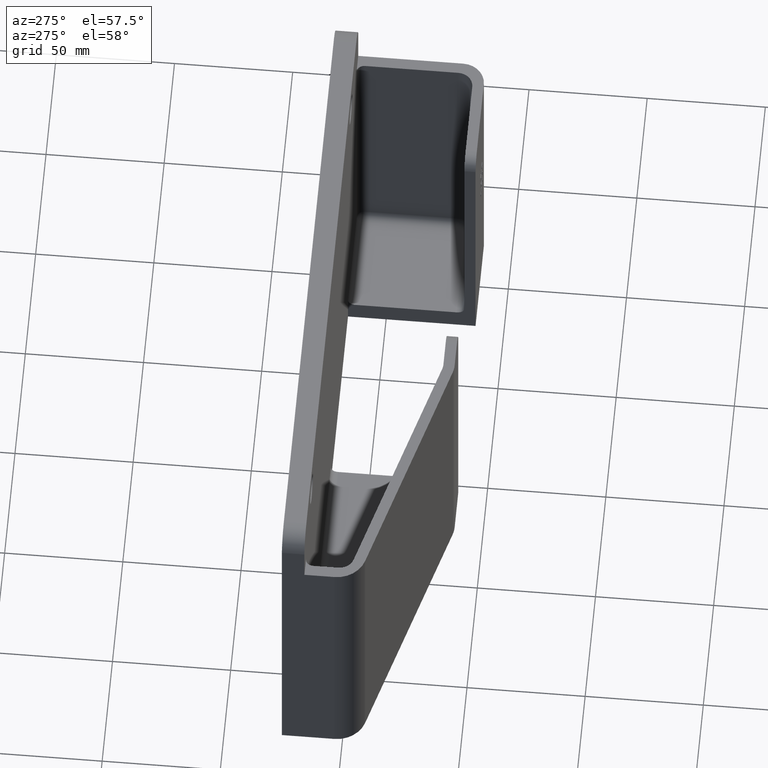
[diagram: clean part render]
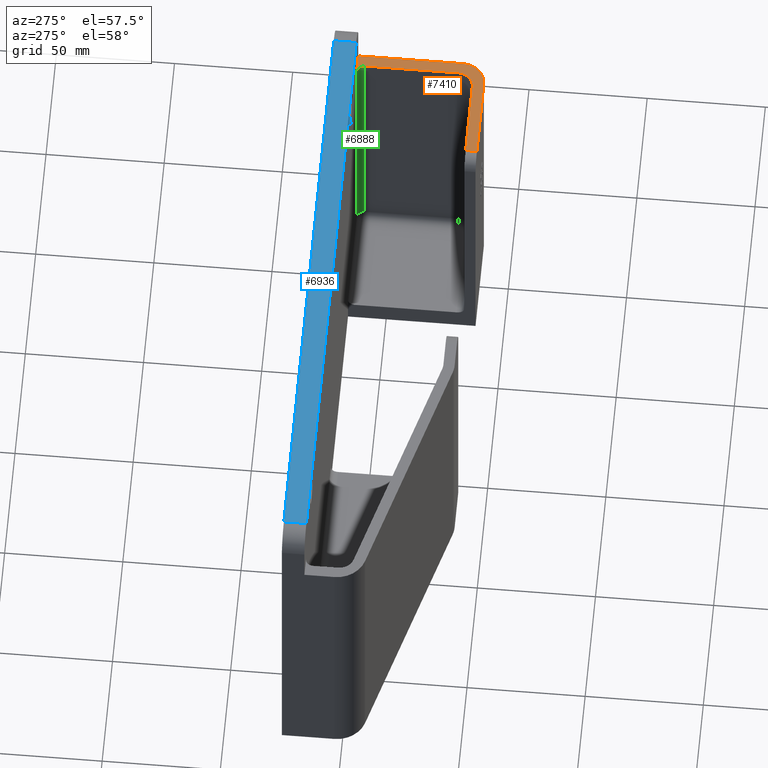
[diagram: same view with three faces highlighted in distinct colors, each labeled with its STEP entity id]
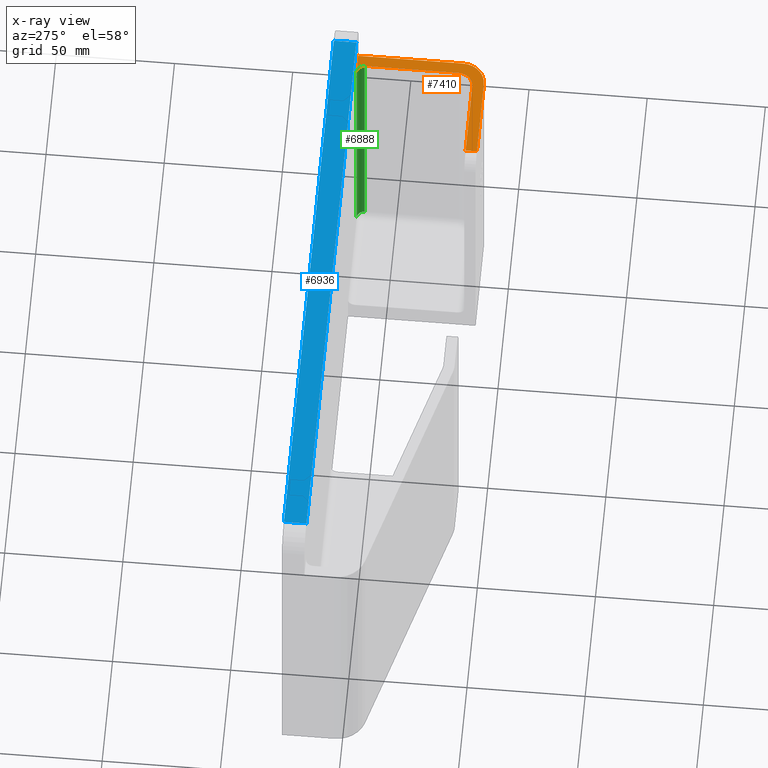
[diagram: x-ray of the same camera — body ghosted, the three highlighted faces saturated]
A machine part, auxiliary view with three faces highlighted in distinct colors.
The next image is the same camera in x-ray (body ghosted, the three faces saturated) — at least one of them is partly hidden behind the body in this view.
Their STEP definitions:

[orange] entity #7410 — the highlighted planar face has unit normal (0, 0, -1).
#97 = DIRECTION ( 'NONE',  ( 0.0000000000000000000, -1.000000000000000000, -1.941591794598364600E-032 ) ) ;
#98 = CARTESIAN_POINT ( 'NONE',  ( 4.812102906775091800, 0.6250000000000005600, 5.000000000000000000 ) ) ;
#132 = DIRECTION ( 'NONE',  ( -1.000000000000000000, -1.416663888520787000E-016, -1.066087021917761500E-016 ) ) ;
#133 = CARTESIAN_POINT ( 'NONE',  ( 4.812102906775091800, -1.312500000000000900, 5.000000000000000000 ) ) ;
#461 = LINE ( 'NONE', #133, #462 ) ;
#462 = VECTOR ( 'NONE', #132, 39.37007874015748100 ) ;
#483 = LINE ( 'NONE', #98, #484 ) ;
#484 = VECTOR ( 'NONE', #97, 39.37007874015748100 ) ;
#1084 = ORIENTED_EDGE ( 'NONE', *, *, #8144, .T. ) ;
#1086 = ORIENTED_EDGE ( 'NONE', *, *, #5217, .T. ) ;
#1088 = ORIENTED_EDGE ( 'NONE', *, *, #8147, .T. ) ;
#1090 = ORIENTED_EDGE ( 'NONE', *, *, #5230, .T. ) ;
#1092 = ORIENTED_EDGE ( 'NONE', *, *, #8145, .T. ) ;
#1094 = ORIENTED_EDGE ( 'NONE', *, *, #5263, .T. ) ;
#1096 = ORIENTED_EDGE ( 'NONE', *, *, #8166, .F. ) ;
#1098 = ORIENTED_EDGE ( 'NONE', *, *, #8148, .T. ) ;
#1100 = ORIENTED_EDGE ( 'NONE', *, *, #8195, .F. ) ;
#1233 = VERTEX_POINT ( 'NONE', #4585 ) ;
#1244 = VERTEX_POINT ( 'NONE', #4572 ) ;
#1281 = VERTEX_POINT ( 'NONE', #4530 ) ;
#1310 = VERTEX_POINT ( 'NONE', #4499 ) ;
#1361 = VERTEX_POINT ( 'NONE', #4440 ) ;
#1368 = VERTEX_POINT ( 'NONE', #4433 ) ;
#1369 = VERTEX_POINT ( 'NONE', #4432 ) ;
#1376 = VERTEX_POINT ( 'NONE', #4425 ) ;
#1706 = DIRECTION ( 'NONE',  ( -1.000000000000000000, 0.0000000000000000000, 0.0000000000000000000 ) ) ;
#1729 = DIRECTION ( 'NONE',  ( -1.066087021917761400E-016, -1.941591794598364300E-032, 1.000000000000000000 ) ) ;
#1747 = CARTESIAN_POINT ( 'NONE',  ( 4.625000000000000000, -1.124999999999999800, 5.000000000000000000 ) ) ;
#1786 = DIRECTION ( 'NONE',  ( -1.000000000000000000, 0.0000000000000000000, 0.0000000000000000000 ) ) ;
#1796 = CARTESIAN_POINT ( 'NONE',  ( 4.562102906775091800, -1.062500000000000900, 5.000000000000000000 ) ) ;
#1869 = DIRECTION ( 'NONE',  ( 1.821231995776175700E-016, -1.000000000000000000, -0.0000000000000000000 ) ) ;
#1873 = DIRECTION ( 'NONE',  ( -1.000000000000000000, -9.106159978880877400E-017, -1.066087021917761500E-016 ) ) ;
#1874 = CARTESIAN_POINT ( 'NONE',  ( 5.000000000000000000, -1.499999999999999600, 5.000000000000000000 ) ) ;
#1956 = DIRECTION ( 'NONE',  ( 1.821231995776176200E-016, -1.000000000000000000, 2.736911063134408300E-048 ) ) ;
#1967 = DIRECTION ( 'NONE',  ( -1.000000000000000000, 0.0000000000000000000, 0.0000000000000000000 ) ) ;
#1995 = CARTESIAN_POINT ( 'NONE',  ( 4.999999999999998200, 10.92366496202299000, 5.000000000000000000 ) ) ;
#2032 = CARTESIAN_POINT ( 'NONE',  ( 4.687102906775091800, 0.5000000000000005600, 5.000000000000000000 ) ) ;
#2050 = DIRECTION ( 'NONE',  ( 1.066087021917761400E-016, 1.941591794598364300E-032, -1.000000000000000000 ) ) ;
#2076 = DIRECTION ( 'NONE',  ( 1.066087021917761400E-016, 1.941591794598364300E-032, -1.000000000000000000 ) ) ;
#2105 = CARTESIAN_POINT ( 'NONE',  ( 3.299999999999998000, 10.92366496202299000, 5.000000000000000000 ) ) ;
#2485 = DIRECTION ( 'NONE',  ( -1.000000000000000000, 0.0000000000000000000, -1.066087021917761500E-016 ) ) ;
#2554 = DIRECTION ( 'NONE',  ( 1.066087021917761500E-016, 1.941591794598364300E-032, -1.000000000000000000 ) ) ;
#2835 = CARTESIAN_POINT ( 'NONE',  ( 4.999999999999998200, 10.92366496202299000, 5.000000000000000000 ) ) ;
#2871 = PLANE ( 'NONE',  #4917 ) ;
#3252 = LINE ( 'NONE', #4789, #3253 ) ;
#3253 = VECTOR ( 'NONE', #4781, 39.37007874015748100 ) ;
#3937 = FACE_OUTER_BOUND ( 'NONE', #5134, .T. ) ;
#4305 = CARTESIAN_POINT ( 'NONE',  ( 4.812102906775091800, 0.5000000000000005600, 5.000000000000000000 ) ) ;
#4425 = CARTESIAN_POINT ( 'NONE',  ( 3.300000000000000300, -1.499999999999999800, 5.000000000000000000 ) ) ;
#4432 = CARTESIAN_POINT ( 'NONE',  ( 3.300000000000000300, -1.312500000000001100, 5.000000000000000000 ) ) ;
#4433 = CARTESIAN_POINT ( 'NONE',  ( 4.625000000000000000, -1.499999999999999600, 5.000000000000000000 ) ) ;
#4440 = CARTESIAN_POINT ( 'NONE',  ( 5.000000000000000000, -1.125000000000000700, 5.000000000000000000 ) ) ;
#4447 = VERTEX_POINT ( 'NONE', #4305 ) ;
#4499 = CARTESIAN_POINT ( 'NONE',  ( 4.812102906775091800, -1.062500000000001100, 5.000000000000000000 ) ) ;
#4530 = CARTESIAN_POINT ( 'NONE',  ( 4.687102906775091800, 0.6250000000000011100, 5.000000000000000000 ) ) ;
#4572 = CARTESIAN_POINT ( 'NONE',  ( 5.000000000000000000, 0.6250000000000011100, 5.000000000000000000 ) ) ;
#4585 = CARTESIAN_POINT ( 'NONE',  ( 4.562102906775091800, -1.312500000000000900, 5.000000000000000000 ) ) ;
#4781 = DIRECTION ( 'NONE',  ( -1.000000000000000000, -1.244892756606500100E-016, -1.066087021917761500E-016 ) ) ;
#4789 = CARTESIAN_POINT ( 'NONE',  ( 4.999999999999999100, 0.6250000000000011100, 5.000000000000000000 ) ) ;
#4917 = AXIS2_PLACEMENT_3D ( 'NONE', #2835, #2554, #2485 ) ;
#4950 = AXIS2_PLACEMENT_3D ( 'NONE', #1747, #1729, #1706 ) ;
#4951 = AXIS2_PLACEMENT_3D ( 'NONE', #2032, #2076, #1967 ) ;
#4952 = AXIS2_PLACEMENT_3D ( 'NONE', #1796, #2050, #1786 ) ;
#5134 = EDGE_LOOP ( 'NONE', ( #1100, #1098, #1096, #1094, #1092, #1090, #1088, #1086, #1084 ) ) ;
#5217 = EDGE_CURVE ( 'NONE', #1233, #1369, #461, .T. ) ;
#5230 = EDGE_CURVE ( 'NONE', #4447, #1310, #483, .T. ) ;
#5263 = EDGE_CURVE ( 'NONE', #1244, #1281, #3252, .T. ) ;
#7410 = ADVANCED_FACE ( 'NONE', ( #3937 ), #2871, .F. ) ;
#7506 = LINE ( 'NONE', #2105, #7512 ) ;
#7512 = VECTOR ( 'NONE', #1956, 39.37007874015748100 ) ;
#7518 = CIRCLE ( 'NONE', #4951, 0.1249999999999999000 ) ;
#7521 = CIRCLE ( 'NONE', #4952, 0.2499999999999998100 ) ;
#7523 = CIRCLE ( 'NONE', #4950, 0.3750000000000002200 ) ;
#7543 = LINE ( 'NONE', #1995, #7547 ) ;
#7547 = VECTOR ( 'NONE', #1869, 39.37007874015748100 ) ;
#7596 = LINE ( 'NONE', #1874, #7597 ) ;
#7597 = VECTOR ( 'NONE', #1873, 39.37007874015748100 ) ;
#8144 = EDGE_CURVE ( 'NONE', #1369, #1376, #7506, .T. ) ;
#8145 = EDGE_CURVE ( 'NONE', #1281, #4447, #7518, .T. ) ;
#8147 = EDGE_CURVE ( 'NONE', #1310, #1233, #7521, .T. ) ;
#8148 = EDGE_CURVE ( 'NONE', #1368, #1361, #7523, .T. ) ;
#8166 = EDGE_CURVE ( 'NONE', #1244, #1361, #7543, .T. ) ;
#8195 = EDGE_CURVE ( 'NONE', #1368, #1376, #7596, .T. ) ;

[blue] entity #6936 — the highlighted planar face has unit normal (0, 0, -1).
#23 = DIRECTION ( 'NONE',  ( 0.0000000000000000000, 1.000000000000000000, 0.0000000000000000000 ) ) ;
#25 = CARTESIAN_POINT ( 'NONE',  ( 4.625000000000000000, -1.499999999999999600, 6.000000000000000900 ) ) ;
#43 = DIRECTION ( 'NONE',  ( 0.0000000000000000000, -1.000000000000000000, 0.0000000000000000000 ) ) ;
#44 = CARTESIAN_POINT ( 'NONE',  ( -4.874999999999999100, -1.499999999999999600, 6.000000000000000900 ) ) ;
#77 = DIRECTION ( 'NONE',  ( -1.000000000000000000, -1.244892756606499900E-016, 0.0000000000000000000 ) ) ;
#78 = CARTESIAN_POINT ( 'NONE',  ( 4.812102906775091800, 0.6250000000000005600, 6.000000000000000900 ) ) ;
#464 = VECTOR ( 'NONE', #77, 39.37007874015748100 ) ;
#480 = LINE ( 'NONE', #78, #464 ) ;
#509 = LINE ( 'NONE', #44, #510 ) ;
#510 = VECTOR ( 'NONE', #43, 39.37007874015748100 ) ;
#514 = LINE ( 'NONE', #25, #515 ) ;
#515 = VECTOR ( 'NONE', #23, 39.37007874015748100 ) ;
#526 = LINE ( 'NONE', #4808, #3248 ) ;
#538 = EDGE_LOOP ( 'NONE', ( #5656, #5638, #5637, #5636 ) ) ;
#1077 = FACE_OUTER_BOUND ( 'NONE', #538, .T. ) ;
#1360 = VERTEX_POINT ( 'NONE', #4441 ) ;
#1366 = VERTEX_POINT ( 'NONE', #4435 ) ;
#1380 = VERTEX_POINT ( 'NONE', #4420 ) ;
#1381 = VERTEX_POINT ( 'NONE', #4419 ) ;
#1498 = AXIS2_PLACEMENT_3D ( 'NONE', #3700, #3813, #3811 ) ;
#3248 = VECTOR ( 'NONE', #4802, 39.37007874015748100 ) ;
#3698 = PLANE ( 'NONE',  #1498 ) ;
#3700 = CARTESIAN_POINT ( 'NONE',  ( 5.000000000000000000, -1.499999999999999600, 6.000000000000000900 ) ) ;
#3811 = DIRECTION ( 'NONE',  ( -1.000000000000000000, 0.0000000000000000000, -0.0000000000000000000 ) ) ;
#3813 = DIRECTION ( 'NONE',  ( 0.0000000000000000000, 0.0000000000000000000, -1.000000000000000000 ) ) ;
#4419 = CARTESIAN_POINT ( 'NONE',  ( 4.625000000000000000, 1.000000000000000700, 6.000000000000000900 ) ) ;
#4420 = CARTESIAN_POINT ( 'NONE',  ( -4.874999999999999100, 0.6249999999999993300, 6.000000000000000900 ) ) ;
#4435 = CARTESIAN_POINT ( 'NONE',  ( -4.874999999999999100, 0.9999999999999994400, 6.000000000000000900 ) ) ;
#4441 = CARTESIAN_POINT ( 'NONE',  ( 4.625000000000000000, 0.6250000000000005600, 6.000000000000000900 ) ) ;
#4802 = DIRECTION ( 'NONE',  ( -1.000000000000000000, -1.199347899657481600E-016, 0.0000000000000000000 ) ) ;
#4808 = CARTESIAN_POINT ( 'NONE',  ( 5.000000000000000000, 1.000000000000000700, 6.000000000000000900 ) ) ;
#5236 = EDGE_CURVE ( 'NONE', #1360, #1380, #480, .T. ) ;
#5248 = EDGE_CURVE ( 'NONE', #1366, #1380, #509, .T. ) ;
#5256 = EDGE_CURVE ( 'NONE', #1360, #1381, #514, .T. ) ;
#5262 = EDGE_CURVE ( 'NONE', #1381, #1366, #526, .T. ) ;
#5636 = ORIENTED_EDGE ( 'NONE', *, *, #5256, .T. ) ;
#5637 = ORIENTED_EDGE ( 'NONE', *, *, #5236, .F. ) ;
#5638 = ORIENTED_EDGE ( 'NONE', *, *, #5248, .T. ) ;
#5656 = ORIENTED_EDGE ( 'NONE', *, *, #5262, .T. ) ;
#6936 = ADVANCED_FACE ( 'NONE', ( #1077 ), #3698, .F. ) ;

[green] entity #6888 — the highlighted cylindrical surface (edge-blend (fillet) strip) has radius 3.175 mm, axis along (0, 0, 1).
#35 = DIRECTION ( 'NONE',  ( -0.0000000000000000000, -0.0000000000000000000, 1.000000000000000000 ) ) ;
#45 = CARTESIAN_POINT ( 'NONE',  ( 4.687102906775091800, 0.6250000000000005600, 5.000000000000000000 ) ) ;
#236 = ORIENTED_EDGE ( 'NONE', *, *, #6958, .F. ) ;
#237 = ORIENTED_EDGE ( 'NONE', *, *, #5321, .F. ) ;
#238 = ORIENTED_EDGE ( 'NONE', *, *, #5251, .F. ) ;
#239 = ORIENTED_EDGE ( 'NONE', *, *, #8145, .F. ) ;
#516 = LINE ( 'NONE', #45, #518 ) ;
#518 = VECTOR ( 'NONE', #35, 39.37007874015748100 ) ;
#986 = FACE_OUTER_BOUND ( 'NONE', #7068, .T. ) ;
#987 = CYLINDRICAL_SURFACE ( 'NONE', #1483, 0.1249999999999999000 ) ;
#1274 = VERTEX_POINT ( 'NONE', #4539 ) ;
#1281 = VERTEX_POINT ( 'NONE', #4530 ) ;
#1364 = VERTEX_POINT ( 'NONE', #4437 ) ;
#1443 = AXIS2_PLACEMENT_3D ( 'NONE', #3480, #3549, #3548 ) ;
#1483 = AXIS2_PLACEMENT_3D ( 'NONE', #7471, #7469, #7468 ) ;
#1967 = DIRECTION ( 'NONE',  ( -1.000000000000000000, 0.0000000000000000000, 0.0000000000000000000 ) ) ;
#2032 = CARTESIAN_POINT ( 'NONE',  ( 4.687102906775091800, 0.5000000000000005600, 5.000000000000000000 ) ) ;
#2076 = DIRECTION ( 'NONE',  ( 1.066087021917761400E-016, 1.941591794598364300E-032, -1.000000000000000000 ) ) ;
#3334 = CIRCLE ( 'NONE', #1443, 0.1249999999999999000 ) ;
#3480 = CARTESIAN_POINT ( 'NONE',  ( 4.687102906775091800, 0.5000000000000005600, 0.4999999999999996100 ) ) ;
#3548 = DIRECTION ( 'NONE',  ( 1.000000000000000000, 0.0000000000000000000, 0.0000000000000000000 ) ) ;
#3549 = DIRECTION ( 'NONE',  ( 0.0000000000000000000, 0.0000000000000000000, 1.000000000000000000 ) ) ;
#3566 = DIRECTION ( 'NONE',  ( 0.0000000000000000000, 0.0000000000000000000, -1.000000000000000000 ) ) ;
#3567 = CARTESIAN_POINT ( 'NONE',  ( 4.812102906775091800, 0.5000000000000005600, 0.3750000000000002200 ) ) ;
#3887 = LINE ( 'NONE', #3567, #3891 ) ;
#3891 = VECTOR ( 'NONE', #3566, 39.37007874015748100 ) ;
#4305 = CARTESIAN_POINT ( 'NONE',  ( 4.812102906775091800, 0.5000000000000005600, 5.000000000000000000 ) ) ;
#4437 = CARTESIAN_POINT ( 'NONE',  ( 4.687102906775091800, 0.6250000000000005600, 0.4999999999999996100 ) ) ;
#4447 = VERTEX_POINT ( 'NONE', #4305 ) ;
#4530 = CARTESIAN_POINT ( 'NONE',  ( 4.687102906775091800, 0.6250000000000011100, 5.000000000000000000 ) ) ;
#4539 = CARTESIAN_POINT ( 'NONE',  ( 4.812102906775091800, 0.5000000000000005600, 0.4999999999999996100 ) ) ;
#4951 = AXIS2_PLACEMENT_3D ( 'NONE', #2032, #2076, #1967 ) ;
#5251 = EDGE_CURVE ( 'NONE', #1364, #1281, #516, .T. ) ;
#5321 = EDGE_CURVE ( 'NONE', #1274, #1364, #3334, .T. ) ;
#6888 = ADVANCED_FACE ( 'NONE', ( #986 ), #987, .F. ) ;
#6958 = EDGE_CURVE ( 'NONE', #4447, #1274, #3887, .T. ) ;
#7068 = EDGE_LOOP ( 'NONE', ( #239, #238, #237, #236 ) ) ;
#7468 = DIRECTION ( 'NONE',  ( 1.000000000000000000, 0.0000000000000000000, 0.0000000000000000000 ) ) ;
#7469 = DIRECTION ( 'NONE',  ( 0.0000000000000000000, 0.0000000000000000000, 1.000000000000000000 ) ) ;
#7471 = CARTESIAN_POINT ( 'NONE',  ( 4.687102906775091800, 0.5000000000000005600, 6.000000000000000900 ) ) ;
#7518 = CIRCLE ( 'NONE', #4951, 0.1249999999999999000 ) ;
#8145 = EDGE_CURVE ( 'NONE', #1281, #4447, #7518, .T. ) ;